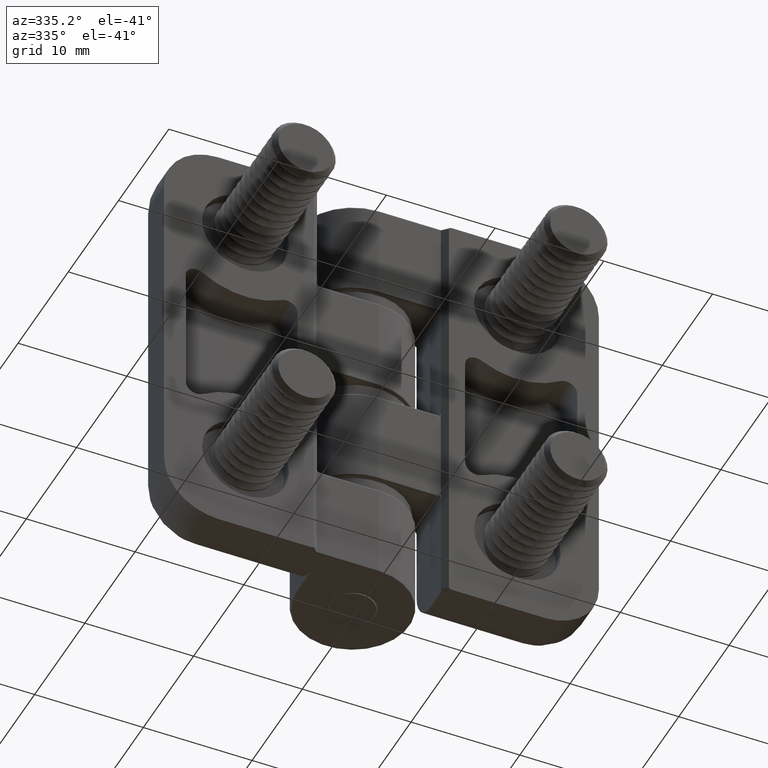
[diagram: clean part render]
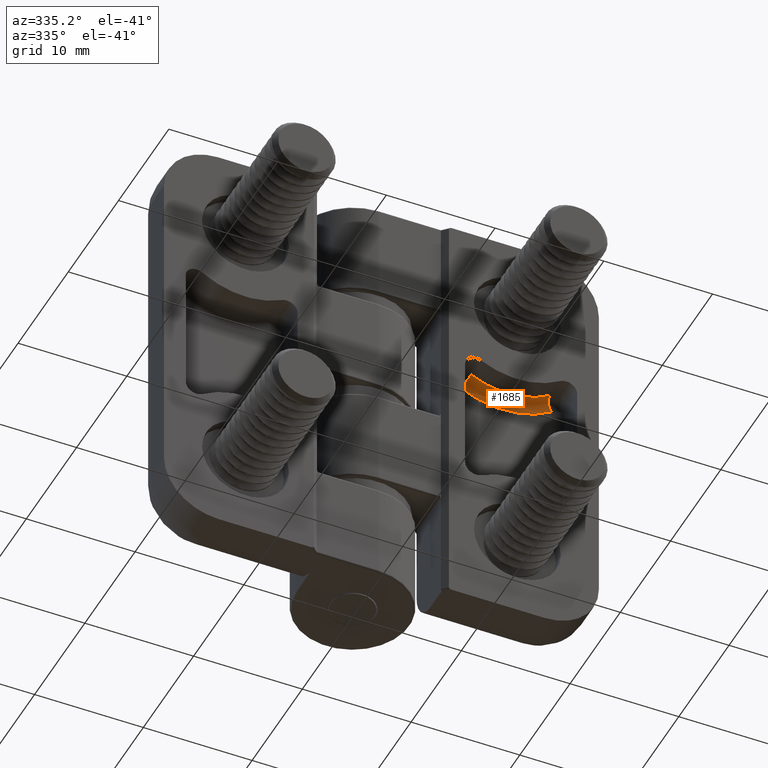
[diagram: same view with one face highlighted and labeled with its STEP entity id]
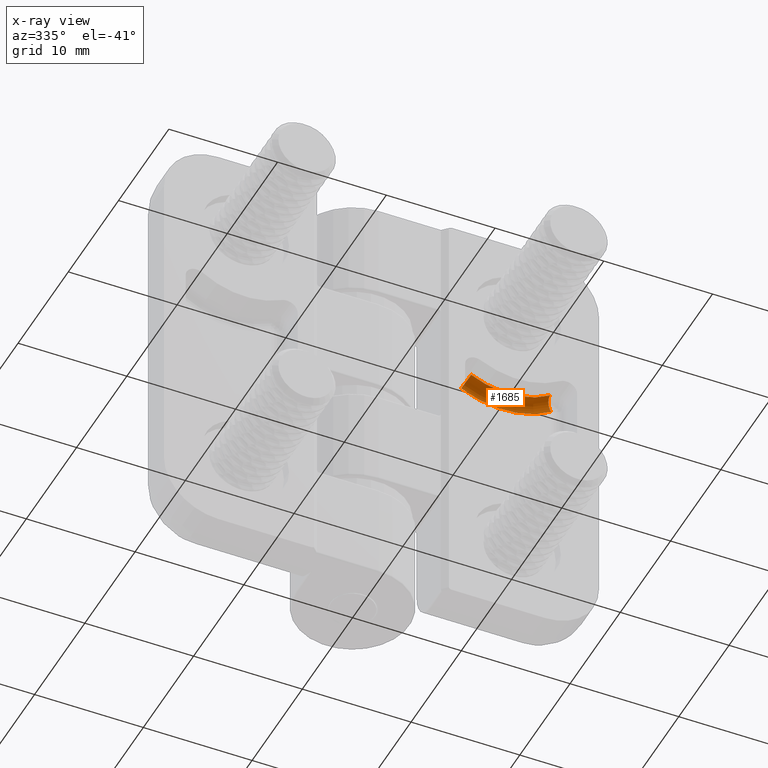
[diagram: x-ray of the same camera — body ghosted, the highlighted face saturated]
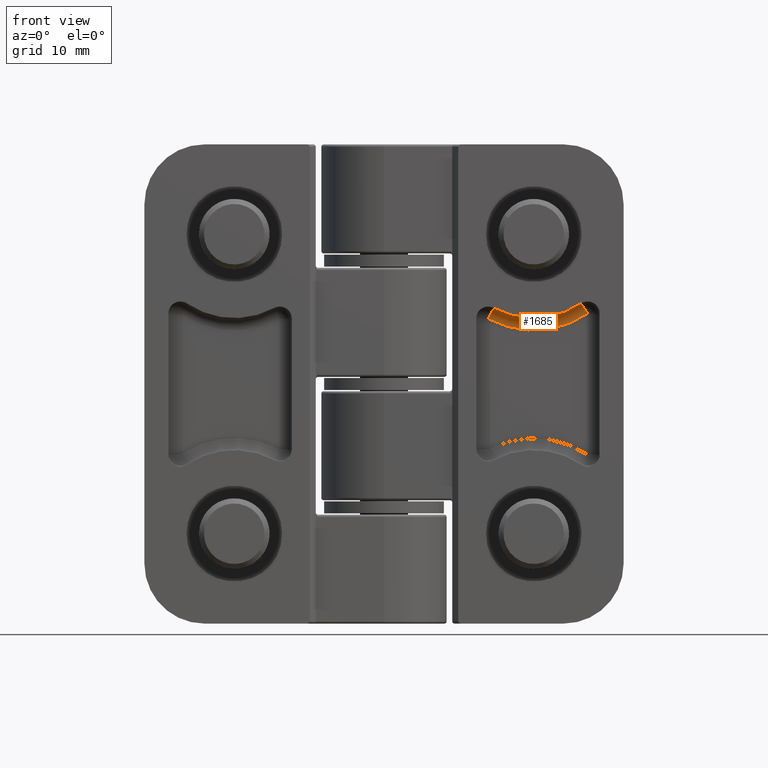
[diagram: same view with one face highlighted and labeled with its STEP entity id]
A machine part, auxiliary view. The second image highlights one B-rep face of the part: STEP entity #1685.
The next image is the same camera in x-ray: the body ghosted, the highlighted face saturated — about 0% of this face is hidden behind the body in this view.
A second angle (front view) of the same face is appended — the face is thin or edge-on in the first view.
In plain terms, the highlighted toroidal blend (fillet) surface has major radius 8 mm and minor (blend) radius 1 mm.
Its self-contained STEP definition (entity closure, byte-faithful):
#251=TOROIDAL_SURFACE('',#1867,8.,1.);
#342=FACE_OUTER_BOUND('',#450,.T.);
#450=EDGE_LOOP('',(#1444,#1445,#1446,#1447));
#579=CIRCLE('',#1868,0.999999999999997);
#580=CIRCLE('',#1869,8.);
#581=CIRCLE('',#1870,1.);
#582=CIRCLE('',#1871,7.);
#819=VERTEX_POINT('',#23066);
#821=VERTEX_POINT('',#23074);
#822=VERTEX_POINT('',#23076);
#823=VERTEX_POINT('',#23078);
#1046=EDGE_CURVE('',#821,#819,#579,.T.);
#1047=EDGE_CURVE('',#819,#822,#580,.T.);
#1048=EDGE_CURVE('',#822,#823,#581,.T.);
#1049=EDGE_CURVE('',#823,#821,#582,.T.);
#1444=ORIENTED_EDGE('',*,*,#1046,.T.);
#1445=ORIENTED_EDGE('',*,*,#1047,.T.);
#1446=ORIENTED_EDGE('',*,*,#1048,.T.);
#1447=ORIENTED_EDGE('',*,*,#1049,.T.);
#1685=ADVANCED_FACE('',(#342),#251,.F.);
#1867=AXIS2_PLACEMENT_3D('',#23073,#2277,#2278);
#1868=AXIS2_PLACEMENT_3D('',#23075,#2279,#2280);
#1869=AXIS2_PLACEMENT_3D('',#23077,#2281,#2282);
#1870=AXIS2_PLACEMENT_3D('',#23079,#2283,#2284);
#1871=AXIS2_PLACEMENT_3D('',#23080,#2285,#2286);
#2277=DIRECTION('center_axis',(2.22044604925031E-16,-1.,0.));
#2278=DIRECTION('ref_axis',(0.,0.,-1.));
#2279=DIRECTION('center_axis',(-0.879985795339902,0.,0.475));
#2280=DIRECTION('ref_axis',(0.475,0.,0.879985795339902));
#2281=DIRECTION('center_axis',(2.22044604925031E-16,-1.,0.));
#2282=DIRECTION('ref_axis',(0.051198797991929,1.13684168727543E-17,-0.998688481501705));
#2283=DIRECTION('center_axis',(0.826797284707684,0.,0.562500000000001));
#2284=DIRECTION('ref_axis',(0.,1.,0.));
#2285=DIRECTION('center_axis',(-2.22044604925031E-16,1.,0.));
#2286=DIRECTION('ref_axis',(0.051198797991929,1.13684168727544E-17,-0.998688481501705));
#23066=CARTESIAN_POINT('',(8.7,-2.75,5.46011363728078));
#23073=CARTESIAN_POINT('Origin',(12.5,-3.75,12.5));
#23074=CARTESIAN_POINT('',(9.175,-3.75,6.34009943262069));
#23075=CARTESIAN_POINT('Origin',(8.7,-3.75,5.46011363728079));
#23076=CARTESIAN_POINT('',(17.,-2.75,5.88562172233852));
#23077=CARTESIAN_POINT('Origin',(12.5,-2.75,12.5));
#23078=CARTESIAN_POINT('',(16.4375,-3.75,6.71241900704621));
#23079=CARTESIAN_POINT('Origin',(17.,-3.75,5.88562172233852));
#23080=CARTESIAN_POINT('Origin',(12.5,-3.75,12.5));